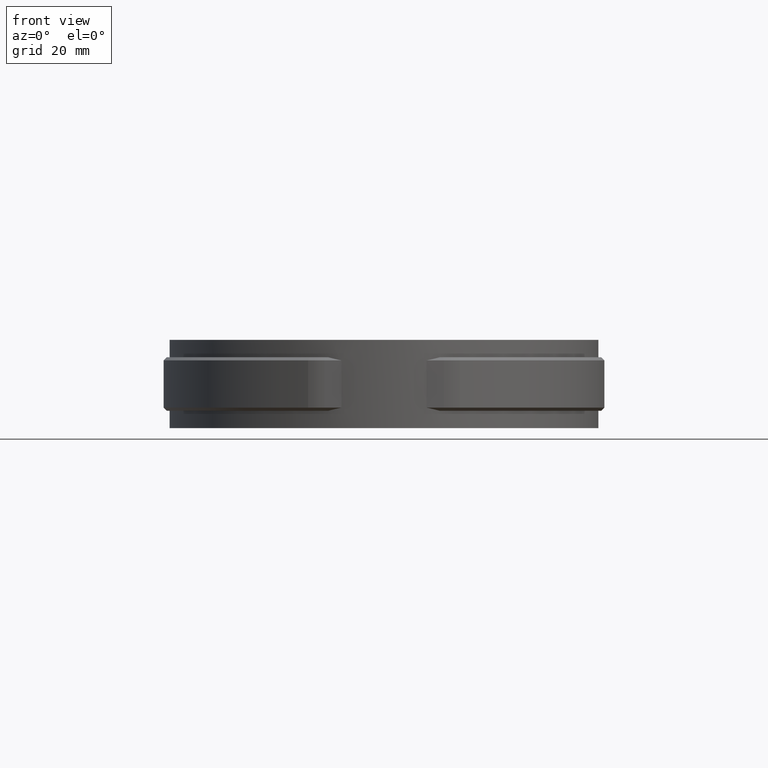
[diagram: clean part render]
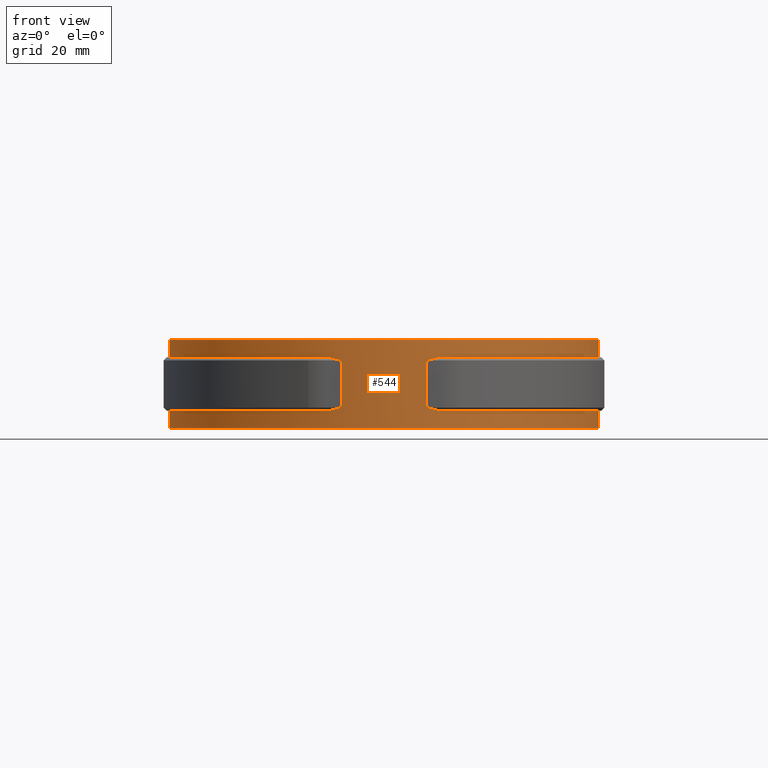
[diagram: same view with one face highlighted and labeled with its STEP entity id]
A machine part, front view. The second image highlights one B-rep face of the part: STEP entity #544.
In plain terms, the highlighted cylindrical surface (partial cylindrical patch) has radius 68 mm, axis along (0, 0, -1).
Its self-contained STEP definition (entity closure, byte-faithful):
#544 = ADVANCED_FACE( '', ( #989 ), #990, .T. );
#989 = FACE_OUTER_BOUND( '', #2286, .T. );
#990 = CYLINDRICAL_SURFACE( '', #2287, 68.0000000000000 );
#2286 = EDGE_LOOP( '', ( #4778, #4779, #4780, #4781, #4782, #4783, #4784, #4785, #4786, #4787, #4788, #4789, #4790, #4791, #4792, #4793 ) );
#2287 = AXIS2_PLACEMENT_3D( '', #4794, #4795, #4796 );
#4778 = ORIENTED_EDGE( '', *, *, #7134, .T. );
#4779 = ORIENTED_EDGE( '', *, *, #7145, .T. );
#4780 = ORIENTED_EDGE( '', *, *, #7146, .T. );
#4781 = ORIENTED_EDGE( '', *, *, #7147, .F. );
#4782 = ORIENTED_EDGE( '', *, *, #7148, .T. );
#4783 = ORIENTED_EDGE( '', *, *, #7149, .F. );
#4784 = ORIENTED_EDGE( '', *, *, #7137, .T. );
#4785 = ORIENTED_EDGE( '', *, *, #7150, .F. );
#4786 = ORIENTED_EDGE( '', *, *, #7127, .F. );
#4787 = ORIENTED_EDGE( '', *, *, #7151, .F. );
#4788 = ORIENTED_EDGE( '', *, *, #7152, .T. );
#4789 = ORIENTED_EDGE( '', *, *, #7153, .F. );
#4790 = ORIENTED_EDGE( '', *, *, #7154, .T. );
#4791 = ORIENTED_EDGE( '', *, *, #7155, .T. );
#4792 = ORIENTED_EDGE( '', *, *, #7122, .F. );
#4793 = ORIENTED_EDGE( '', *, *, #7156, .T. );
#4794 = CARTESIAN_POINT( '', ( 1.73472347597681E-015, 2.77555756156289E-014, -14.0000000000000 ) );
#4795 = DIRECTION( '', ( 0.000000000000000, 0.000000000000000, -1.00000000000000 ) );
#4796 = DIRECTION( '', ( -0.102941178312730, -0.994687445284993, 0.000000000000000 ) );
#7122 = EDGE_CURVE( '', #8221, #8222, #8223, .T. );
#7127 = EDGE_CURVE( '', #8229, #8231, #8232, .T. );
#7134 = EDGE_CURVE( '', #8245, #8243, #8246, .T. );
#7137 = EDGE_CURVE( '', #8250, #8248, #8251, .T. );
#7145 = EDGE_CURVE( '', #8243, #8262, #8263, .F. );
#7146 = EDGE_CURVE( '', #8262, #8264, #8265, .T. );
#7147 = EDGE_CURVE( '', #8266, #8264, #8267, .F. );
#7148 = EDGE_CURVE( '', #8266, #8268, #8269, .F. );
#7149 = EDGE_CURVE( '', #8250, #8268, #8270, .F. );
#7150 = EDGE_CURVE( '', #8231, #8248, #8271, .T. );
#7151 = EDGE_CURVE( '', #8272, #8229, #8273, .F. );
#7152 = EDGE_CURVE( '', #8272, #8274, #8275, .F. );
#7153 = EDGE_CURVE( '', #8276, #8274, #8277, .T. );
#7154 = EDGE_CURVE( '', #8276, #8278, #8279, .T. );
#7155 = EDGE_CURVE( '', #8278, #8222, #8280, .F. );
#7156 = EDGE_CURVE( '', #8221, #8245, #8281, .T. );
#8221 = VERTEX_POINT( '', #11817 );
#8222 = VERTEX_POINT( '', #11818 );
#8223 = LINE( '', #11819, #11820 );
#8229 = VERTEX_POINT( '', #11831 );
#8231 = VERTEX_POINT( '', #11834 );
#8232 = LINE( '', #11835, #11836 );
#8243 = VERTEX_POINT( '', #11854 );
#8245 = VERTEX_POINT( '', #11857 );
#8246 = LINE( '', #11858, #11859 );
#8248 = VERTEX_POINT( '', #11862 );
#8250 = VERTEX_POINT( '', #11865 );
#8251 = LINE( '', #11866, #11867 );
#8262 = VERTEX_POINT( '', #11887 );
#8263 = CIRCLE( '', #11888, 68.0000000000000 );
#8264 = VERTEX_POINT( '', #11889 );
#8265 = ELLIPSE( '', #11890, 96.1665222413705, 68.0000000000000 );
#8266 = VERTEX_POINT( '', #11891 );
#8267 = LINE( '', #11892, #11893 );
#8268 = VERTEX_POINT( '', #11894 );
#8269 = ELLIPSE( '', #11895, 96.1665222413705, 68.0000000000000 );
#8270 = CIRCLE( '', #11896, 68.0000000000000 );
#8271 = CIRCLE( '', #11897, 68.0000000000000 );
#8272 = VERTEX_POINT( '', #11898 );
#8273 = CIRCLE( '', #11899, 68.0000000000000 );
#8274 = VERTEX_POINT( '', #11900 );
#8275 = ELLIPSE( '', #11901, 96.1665222413705, 68.0000000000000 );
#8276 = VERTEX_POINT( '', #11902 );
#8277 = LINE( '', #11903, #11904 );
#8278 = VERTEX_POINT( '', #11905 );
#8279 = ELLIPSE( '', #11906, 96.1665222413705, 68.0000000000000 );
#8280 = CIRCLE( '', #11907, 68.0000000000000 );
#8281 = CIRCLE( '', #11908, 68.0000000000000 );
#11817 = CARTESIAN_POINT( '', ( -5.99999999999999, 67.7347768875044, -14.0000000000000 ) );
#11818 = CARTESIAN_POINT( '', ( -5.99999999999999, 67.7347768875044, -8.50000000000000 ) );
#11819 = CARTESIAN_POINT( '', ( -5.99999999999999, 67.7347768875044, -14.0000000000000 ) );
#11820 = VECTOR( '', #13720, 1000.00000000000 );
#11831 = CARTESIAN_POINT( '', ( -5.99999999999999, 67.7347768875044, 8.50000000000000 ) );
#11834 = CARTESIAN_POINT( '', ( -5.99999999999999, 67.7347768875044, 14.0000000000000 ) );
#11835 = CARTESIAN_POINT( '', ( -5.99999999999999, 67.7347768875044, -14.0000000000000 ) );
#11836 = VECTOR( '', #13724, 1000.00000000000 );
#11854 = CARTESIAN_POINT( '', ( 6.00000000000001, 67.7347768875045, -8.50000000000000 ) );
#11857 = CARTESIAN_POINT( '', ( 6.00000000000001, 67.7347768875045, -14.0000000000000 ) );
#11858 = CARTESIAN_POINT( '', ( 6.00000000000001, 67.7347768875045, -14.0000000000000 ) );
#11859 = VECTOR( '', #13730, 1000.00000000000 );
#11862 = CARTESIAN_POINT( '', ( 6.00000000000001, 67.7347768875045, 14.0000000000000 ) );
#11865 = CARTESIAN_POINT( '', ( 6.00000000000000, 67.7347768875045, 8.50000000000000 ) );
#11866 = CARTESIAN_POINT( '', ( 6.00000000000001, 67.7347768875045, -14.0000000000000 ) );
#11867 = VECTOR( '', #13733, 1000.00000000000 );
#11887 = CARTESIAN_POINT( '', ( 17.7222318007637, -65.6500000000000, -8.50000000000000 ) );
#11888 = AXIS2_PLACEMENT_3D( '', #13740, #13741, #13742 );
#11889 = CARTESIAN_POINT( '', ( 13.4824886426799, -66.6500000000000, -7.50000000000000 ) );
#11890 = AXIS2_PLACEMENT_3D( '', #13743, #13744, #13745 );
#11891 = CARTESIAN_POINT( '', ( 13.4824886426799, -66.6500000000000, 7.50000000000000 ) );
#11892 = CARTESIAN_POINT( '', ( 13.4824886426799, -66.6500000000000, -14.0000000000000 ) );
#11893 = VECTOR( '', #13746, 1000.00000000000 );
#11894 = CARTESIAN_POINT( '', ( 17.7222318007637, -65.6500000000000, 8.50000000000000 ) );
#11895 = AXIS2_PLACEMENT_3D( '', #13747, #13748, #13749 );
#11896 = AXIS2_PLACEMENT_3D( '', #13750, #13751, #13752 );
#11897 = AXIS2_PLACEMENT_3D( '', #13753, #13754, #13755 );
#11898 = CARTESIAN_POINT( '', ( -17.7222318007637, -65.6500000000000, 8.50000000000000 ) );
#11899 = AXIS2_PLACEMENT_3D( '', #13756, #13757, #13758 );
#11900 = CARTESIAN_POINT( '', ( -13.4824886426799, -66.6500000000000, 7.50000000000000 ) );
#11901 = AXIS2_PLACEMENT_3D( '', #13759, #13760, #13761 );
#11902 = CARTESIAN_POINT( '', ( -13.4824886426799, -66.6500000000000, -7.50000000000000 ) );
#11903 = CARTESIAN_POINT( '', ( -13.4824886426799, -66.6500000000000, -14.0000000000000 ) );
#11904 = VECTOR( '', #13762, 1000.00000000000 );
#11905 = CARTESIAN_POINT( '', ( -17.7222318007637, -65.6500000000000, -8.50000000000000 ) );
#11906 = AXIS2_PLACEMENT_3D( '', #13763, #13764, #13765 );
#11907 = AXIS2_PLACEMENT_3D( '', #13766, #13767, #13768 );
#11908 = AXIS2_PLACEMENT_3D( '', #13769, #13770, #13771 );
#13720 = DIRECTION( '', ( 0.000000000000000, 0.000000000000000, 1.00000000000000 ) );
#13724 = DIRECTION( '', ( 0.000000000000000, 0.000000000000000, 1.00000000000000 ) );
#13730 = DIRECTION( '', ( 0.000000000000000, 0.000000000000000, 1.00000000000000 ) );
#13733 = DIRECTION( '', ( 0.000000000000000, 0.000000000000000, 1.00000000000000 ) );
#13740 = CARTESIAN_POINT( '', ( 1.73472347597681E-015, 2.77555756156289E-014, -8.50000000000000 ) );
#13741 = DIRECTION( '', ( 0.000000000000000, 0.000000000000000, 1.00000000000000 ) );
#13742 = DIRECTION( '', ( 1.00000000000000, 0.000000000000000, 0.000000000000000 ) );
#13743 = CARTESIAN_POINT( '', ( 1.73472347597681E-015, 2.77555756156289E-014, -74.1500000000001 ) );
#13744 = DIRECTION( '', ( 0.000000000000000, -0.707106781186548, -0.707106781186547 ) );
#13745 = DIRECTION( '', ( 0.000000000000000, -0.707106781186547, 0.707106781186548 ) );
#13746 = DIRECTION( '', ( 0.000000000000000, 0.000000000000000, 1.00000000000000 ) );
#13747 = CARTESIAN_POINT( '', ( 1.73472347597681E-015, 2.77555756156289E-014, 74.1500000000000 ) );
#13748 = DIRECTION( '', ( 0.000000000000000, 0.707106781186548, -0.707106781186548 ) );
#13749 = DIRECTION( '', ( 0.000000000000000, 0.707106781186548, 0.707106781186548 ) );
#13750 = CARTESIAN_POINT( '', ( 1.73472347597681E-015, 2.77555756156289E-014, 8.50000000000000 ) );
#13751 = DIRECTION( '', ( 0.000000000000000, 0.000000000000000, 1.00000000000000 ) );
#13752 = DIRECTION( '', ( 1.00000000000000, 0.000000000000000, 0.000000000000000 ) );
#13753 = CARTESIAN_POINT( '', ( 1.73472347597681E-015, 2.77555756156289E-014, 14.0000000000000 ) );
#13754 = DIRECTION( '', ( 0.000000000000000, 0.000000000000000, 1.00000000000000 ) );
#13755 = DIRECTION( '', ( 1.00000000000000, -1.38777878078145E-017, 0.000000000000000 ) );
#13756 = CARTESIAN_POINT( '', ( 1.73472347597681E-015, 2.77555756156289E-014, 8.50000000000000 ) );
#13757 = DIRECTION( '', ( 0.000000000000000, 0.000000000000000, 1.00000000000000 ) );
#13758 = DIRECTION( '', ( 1.00000000000000, 0.000000000000000, 0.000000000000000 ) );
#13759 = CARTESIAN_POINT( '', ( 1.73472347597681E-015, 2.77555756156289E-014, 74.1500000000000 ) );
#13760 = DIRECTION( '', ( 0.000000000000000, 0.707106781186548, -0.707106781186548 ) );
#13761 = DIRECTION( '', ( 0.000000000000000, 0.707106781186548, 0.707106781186548 ) );
#13762 = DIRECTION( '', ( 0.000000000000000, 0.000000000000000, 1.00000000000000 ) );
#13763 = CARTESIAN_POINT( '', ( 1.73472347597681E-015, 2.77555756156289E-014, -74.1500000000001 ) );
#13764 = DIRECTION( '', ( 0.000000000000000, -0.707106781186548, -0.707106781186547 ) );
#13765 = DIRECTION( '', ( 0.000000000000000, -0.707106781186547, 0.707106781186548 ) );
#13766 = CARTESIAN_POINT( '', ( 1.73472347597681E-015, 2.77555756156289E-014, -8.50000000000000 ) );
#13767 = DIRECTION( '', ( 0.000000000000000, 0.000000000000000, 1.00000000000000 ) );
#13768 = DIRECTION( '', ( 1.00000000000000, 0.000000000000000, 0.000000000000000 ) );
#13769 = CARTESIAN_POINT( '', ( 1.73472347597681E-015, 2.77555756156289E-014, -14.0000000000000 ) );
#13770 = DIRECTION( '', ( 0.000000000000000, 0.000000000000000, 1.00000000000000 ) );
#13771 = DIRECTION( '', ( 1.00000000000000, -1.38777878078145E-017, 0.000000000000000 ) );